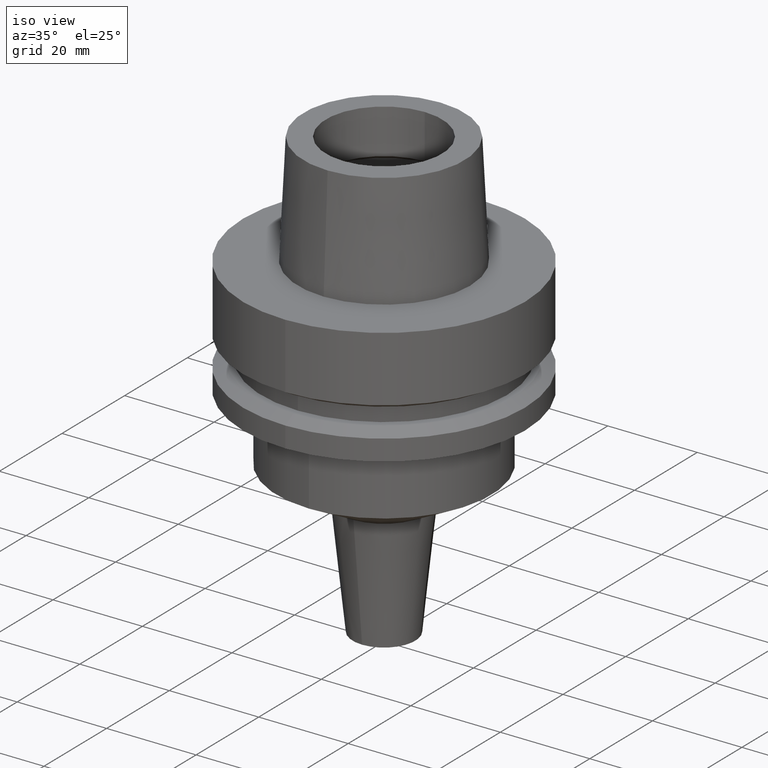
[diagram: clean part render]
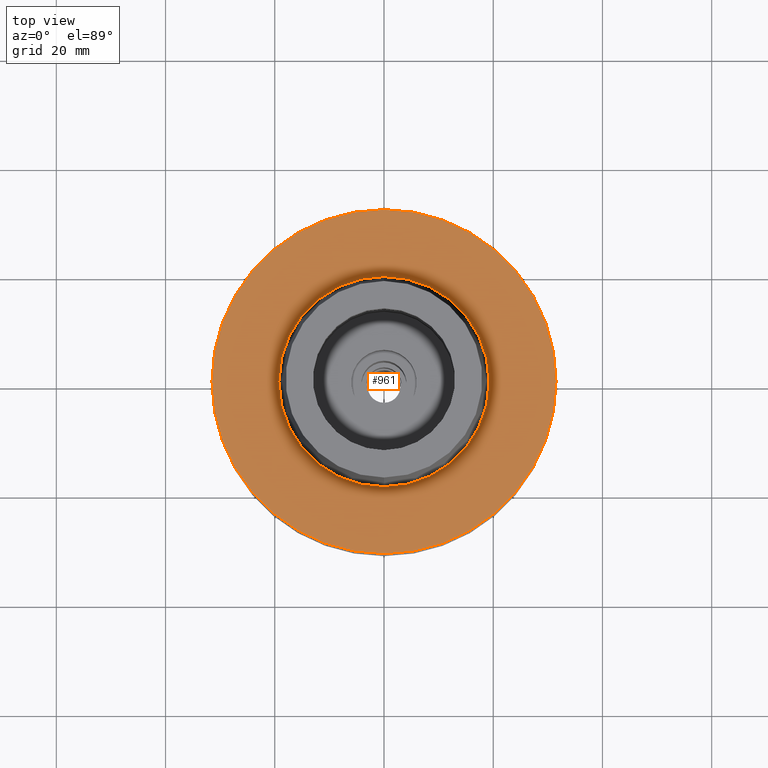
[diagram: tour spotlight — one face highlighted and labeled with its STEP entity id]
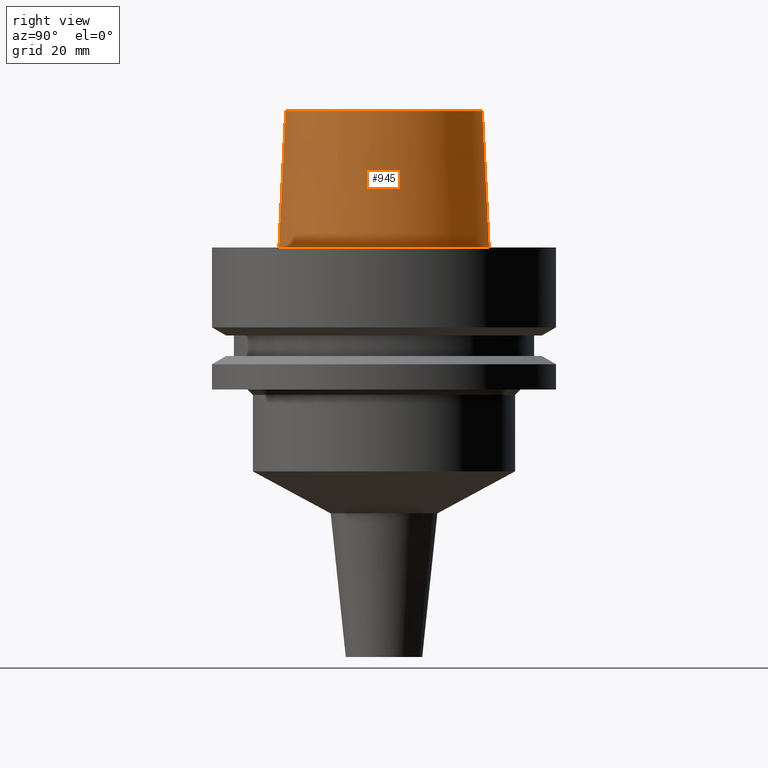
[diagram: tour spotlight — one face highlighted and labeled with its STEP entity id]
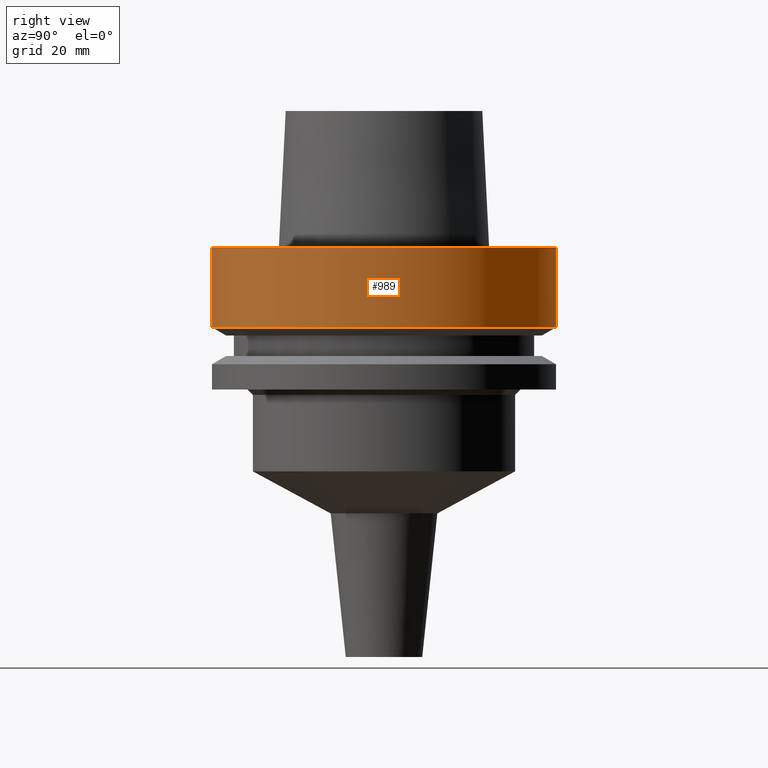
[diagram: tour spotlight — one face highlighted and labeled with its STEP entity id]
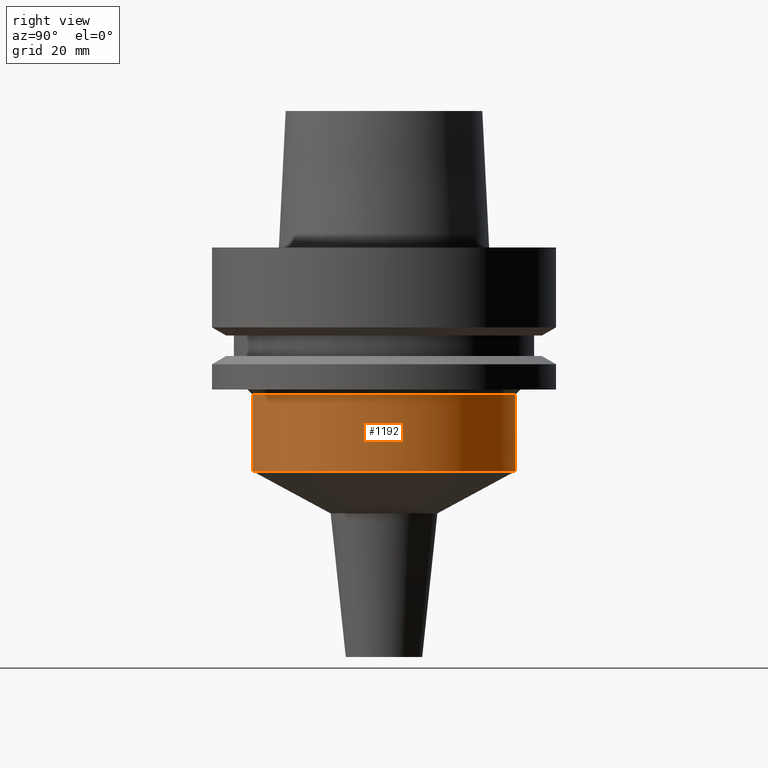
[diagram: tour spotlight — one face highlighted and labeled with its STEP entity id]
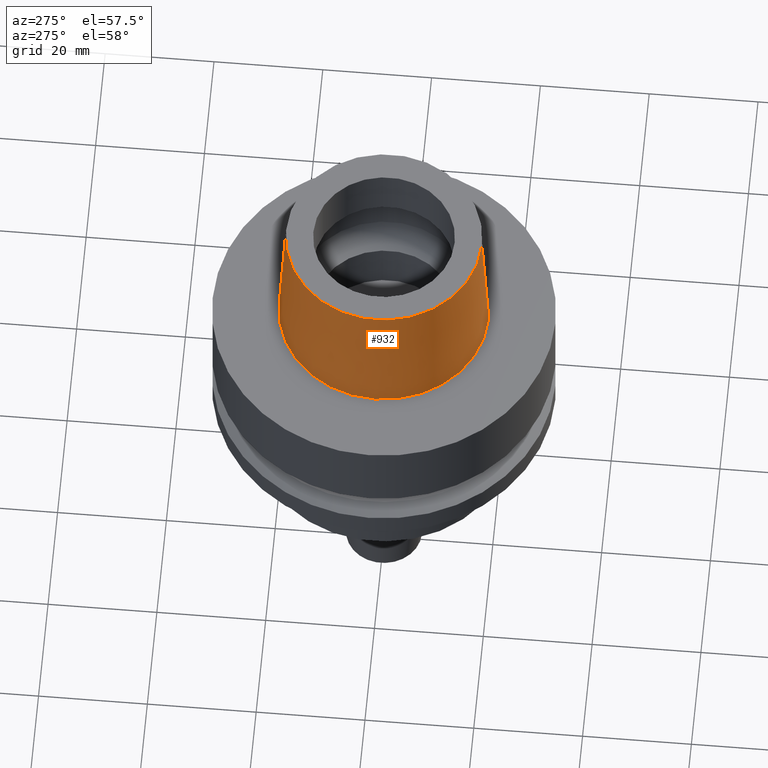
[diagram: tour spotlight — one face highlighted and labeled with its STEP entity id]
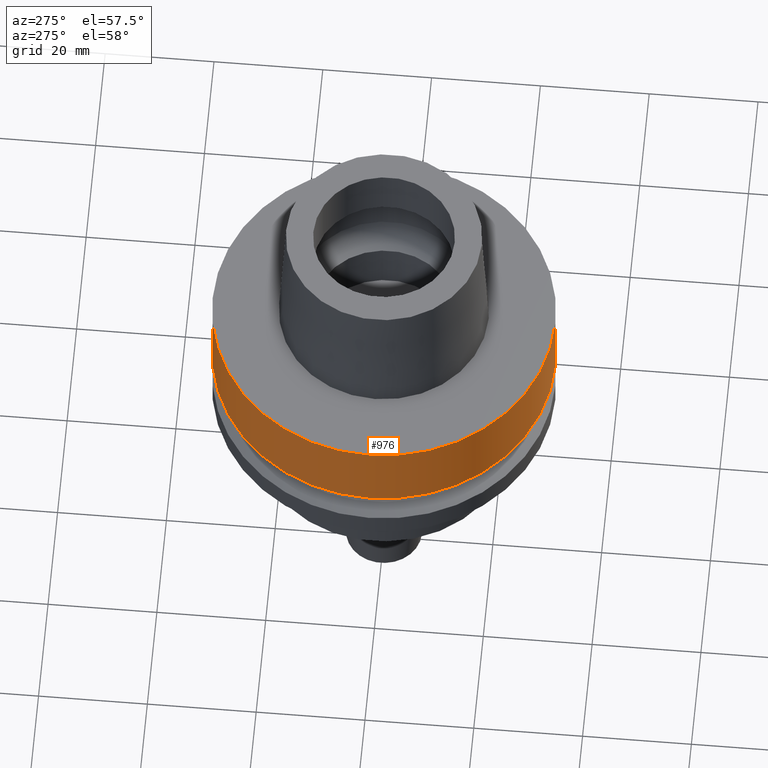
[diagram: tour spotlight — one face highlighted and labeled with its STEP entity id]
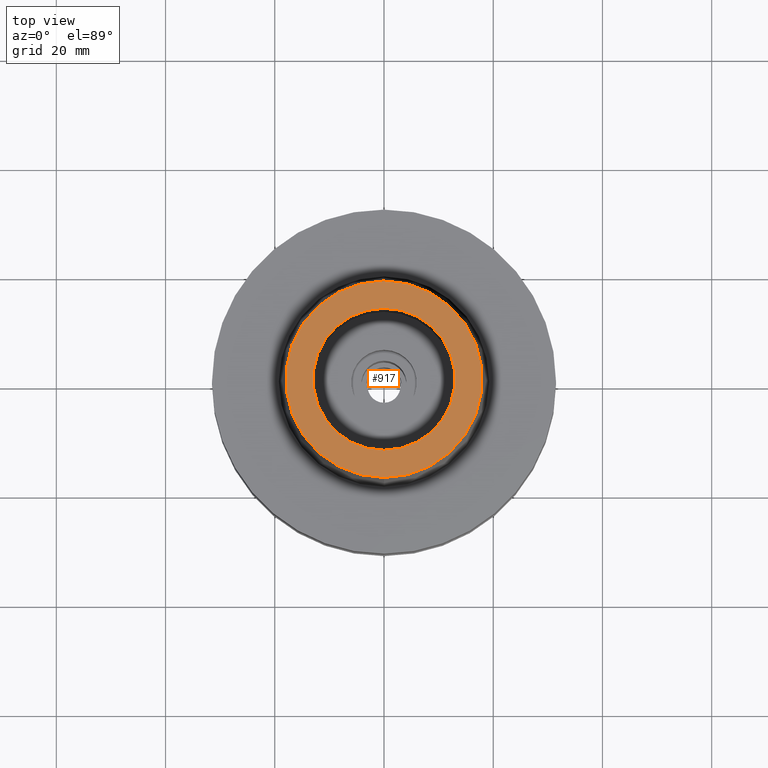
[diagram: tour spotlight — one face highlighted and labeled with its STEP entity id]
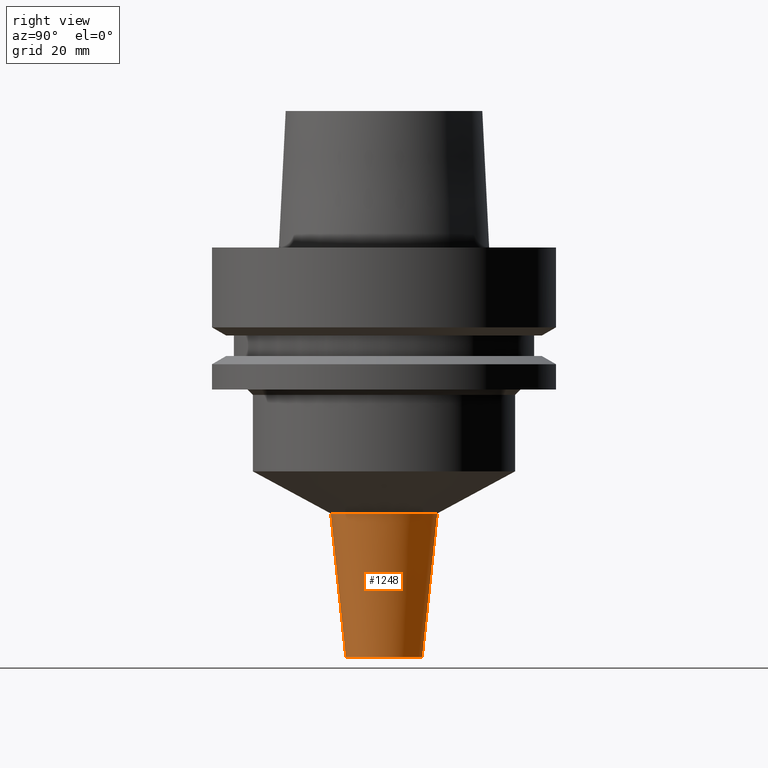
[diagram: tour spotlight — one face highlighted and labeled with its STEP entity id]
A machine part: a face-by-face anatomy tour. The part has 50 B-rep faces; the first image is the clean iso view, then the 8 largest visible faces are spotlighted one at a time (largest first), each with its STEP entity span.

Face 1 — top view, entity #961. In plain terms, the highlighted planar face has unit normal (0, 0, -1).
Definition (entity closure, byte-faithful):
#64=CARTESIAN_POINT('',(0.E0,0.E0,0.E0));
#65=DIRECTION('',(0.E0,0.E0,-1.E0));
#66=DIRECTION('',(0.E0,-1.E0,0.E0));
#67=AXIS2_PLACEMENT_3D('',#64,#65,#66);
#72=CARTESIAN_POINT('',(0.E0,0.E0,0.E0));
#73=DIRECTION('',(0.E0,0.E0,-1.E0));
#74=DIRECTION('',(0.E0,1.E0,0.E0));
#75=AXIS2_PLACEMENT_3D('',#72,#73,#74);
#80=CARTESIAN_POINT('',(0.E0,0.E0,2.273736754432E-13));
#81=DIRECTION('',(0.E0,0.E0,1.E0));
#82=DIRECTION('',(0.E0,-1.E0,0.E0));
#83=AXIS2_PLACEMENT_3D('',#80,#81,#82);
#88=CARTESIAN_POINT('',(0.E0,0.E0,2.273736754432E-13));
#89=DIRECTION('',(0.E0,0.E0,1.E0));
#90=DIRECTION('',(0.E0,1.E0,0.E0));
#91=AXIS2_PLACEMENT_3D('',#88,#89,#90);
#892=CARTESIAN_POINT('',(0.E0,3.15E1,0.E0));
#893=VERTEX_POINT('',#892);
#894=CARTESIAN_POINT('',(0.E0,-3.15E1,0.E0));
#895=VERTEX_POINT('',#894);
#896=CARTESIAN_POINT('',(0.E0,-1.924999954280E1,2.273736754432E-13));
#897=CARTESIAN_POINT('',(0.E0,1.924999954280E1,2.273736754432E-13));
#898=VERTEX_POINT('',#896);
#899=VERTEX_POINT('',#897);
#946=CARTESIAN_POINT('',(0.E0,0.E0,0.E0));
#947=DIRECTION('',(0.E0,0.E0,-1.E0));
#948=DIRECTION('',(0.E0,-1.E0,0.E0));
#949=AXIS2_PLACEMENT_3D('',#946,#947,#948);
#950=PLANE('',#949);
#952=ORIENTED_EDGE('',*,*,#951,.T.);
#954=ORIENTED_EDGE('',*,*,#953,.T.);
#955=EDGE_LOOP('',(#952,#954));
#956=FACE_OUTER_BOUND('',#955,.F.);
#957=ORIENTED_EDGE('',*,*,#939,.T.);
#958=ORIENTED_EDGE('',*,*,#928,.T.);
#959=EDGE_LOOP('',(#957,#958));
#960=FACE_BOUND('',#959,.F.);
#68=CIRCLE('',#67,3.15E1);
#76=CIRCLE('',#75,3.15E1);
#84=CIRCLE('',#83,1.924999954280E1);
#92=CIRCLE('',#91,1.924999954280E1);
#928=EDGE_CURVE('',#899,#898,#92,.T.);
#939=EDGE_CURVE('',#898,#899,#84,.T.);
#951=EDGE_CURVE('',#895,#893,#68,.T.);
#953=EDGE_CURVE('',#893,#895,#76,.T.);
#961=ADVANCED_FACE('',(#956,#960),#950,.F.);

Face 2 — right view, entity #945. In plain terms, the highlighted conical surface has half-angle 2.862 deg.
Definition (entity closure, byte-faithful):
#26=CARTESIAN_POINT('',(0.E0,0.E0,2.5E1));
#27=DIRECTION('',(0.E0,0.E0,-1.E0));
#28=DIRECTION('',(0.E0,1.E0,0.E0));
#29=AXIS2_PLACEMENT_3D('',#26,#27,#28);
#50=DIRECTION('',(0.E0,-4.993752584487E-2,-9.987523434328E-1));
#51=VECTOR('',#50,2.503123037897E1);
#52=CARTESIAN_POINT('',(0.E0,-1.800000182882E1,2.5E1));
#53=LINE('',#52,#51);
#57=DIRECTION('',(0.E0,4.993752584487E-2,-9.987523434328E-1));
#58=VECTOR('',#57,2.503123037897E1);
#59=CARTESIAN_POINT('',(0.E0,1.800000182882E1,2.5E1));
#60=LINE('',#59,#58);
#80=CARTESIAN_POINT('',(0.E0,0.E0,2.273736754432E-13));
#81=DIRECTION('',(0.E0,0.E0,1.E0));
#82=DIRECTION('',(0.E0,-1.E0,0.E0));
#83=AXIS2_PLACEMENT_3D('',#80,#81,#82);
#780=CARTESIAN_POINT('',(0.E0,-1.800000182882E1,2.5E1));
#781=CARTESIAN_POINT('',(0.E0,1.800000182882E1,2.5E1));
#782=VERTEX_POINT('',#780);
#783=VERTEX_POINT('',#781);
#896=CARTESIAN_POINT('',(0.E0,-1.924999954280E1,2.273736754432E-13));
#897=CARTESIAN_POINT('',(0.E0,1.924999954280E1,2.273736754432E-13));
#898=VERTEX_POINT('',#896);
#899=VERTEX_POINT('',#897);
#933=CARTESIAN_POINT('',(0.E0,0.E0,1.25E1));
#934=DIRECTION('',(0.E0,0.E0,-1.E0));
#935=DIRECTION('',(0.E0,-1.E0,0.E0));
#936=AXIS2_PLACEMENT_3D('',#933,#934,#935);
#937=CONICAL_SURFACE('',#936,1.862500068581E1,2.8624E0);
#938=ORIENTED_EDGE('',*,*,#923,.T.);
#940=ORIENTED_EDGE('',*,*,#939,.F.);
#941=ORIENTED_EDGE('',*,*,#926,.F.);
#942=ORIENTED_EDGE('',*,*,#907,.F.);
#943=EDGE_LOOP('',(#938,#940,#941,#942));
#944=FACE_OUTER_BOUND('',#943,.F.);
#30=CIRCLE('',#29,1.800000182882E1);
#84=CIRCLE('',#83,1.924999954280E1);
#907=EDGE_CURVE('',#783,#782,#30,.T.);
#923=EDGE_CURVE('',#783,#899,#60,.T.);
#926=EDGE_CURVE('',#782,#898,#53,.T.);
#939=EDGE_CURVE('',#898,#899,#84,.T.);
#945=ADVANCED_FACE('',(#944),#937,.T.);

Face 3 — right view, entity #989. In plain terms, the highlighted cylindrical surface (partial cylindrical patch) has radius 31.5 mm, axis along (0, 0, -1).
Definition (entity closure, byte-faithful):
#72=CARTESIAN_POINT('',(0.E0,0.E0,0.E0));
#73=DIRECTION('',(0.E0,0.E0,-1.E0));
#74=DIRECTION('',(0.E0,1.E0,0.E0));
#75=AXIS2_PLACEMENT_3D('',#72,#73,#74);
#96=DIRECTION('',(0.E0,-4.130355870613E-14,-1.E0));
#97=VECTOR('',#96,1.462250092524E1);
#98=CARTESIAN_POINT('',(0.E0,-3.15E1,0.E0));
#99=LINE('',#98,#97);
#103=DIRECTION('',(0.E0,4.130355870613E-14,-1.E0));
#104=VECTOR('',#103,1.462250092524E1);
#105=CARTESIAN_POINT('',(0.E0,3.15E1,0.E0));
#106=LINE('',#105,#104);
#117=CARTESIAN_POINT('',(0.E0,0.E0,-1.462250092524E1));
#118=DIRECTION('',(0.E0,0.E0,1.E0));
#119=DIRECTION('',(0.E0,-1.E0,0.E0));
#120=AXIS2_PLACEMENT_3D('',#117,#118,#119);
#888=CARTESIAN_POINT('',(0.E0,3.15E1,-1.462250092524E1));
#889=VERTEX_POINT('',#888);
#890=CARTESIAN_POINT('',(0.E0,-3.15E1,-1.462250092524E1));
#891=VERTEX_POINT('',#890);
#892=CARTESIAN_POINT('',(0.E0,3.15E1,0.E0));
#893=VERTEX_POINT('',#892);
#894=CARTESIAN_POINT('',(0.E0,-3.15E1,0.E0));
#895=VERTEX_POINT('',#894);
#977=CARTESIAN_POINT('',(0.E0,0.E0,3.E1));
#978=DIRECTION('',(0.E0,0.E0,-1.E0));
#979=DIRECTION('',(0.E0,-1.E0,0.E0));
#980=AXIS2_PLACEMENT_3D('',#977,#978,#979);
#981=CYLINDRICAL_SURFACE('',#980,3.15E1);
#982=ORIENTED_EDGE('',*,*,#967,.T.);
#984=ORIENTED_EDGE('',*,*,#983,.F.);
#985=ORIENTED_EDGE('',*,*,#970,.F.);
#986=ORIENTED_EDGE('',*,*,#953,.F.);
#987=EDGE_LOOP('',(#982,#984,#985,#986));
#988=FACE_OUTER_BOUND('',#987,.F.);
#76=CIRCLE('',#75,3.15E1);
#121=CIRCLE('',#120,3.15E1);
#953=EDGE_CURVE('',#893,#895,#76,.T.);
#967=EDGE_CURVE('',#893,#889,#106,.T.);
#970=EDGE_CURVE('',#895,#891,#99,.T.);
#983=EDGE_CURVE('',#891,#889,#121,.T.);
#989=ADVANCED_FACE('',(#988),#981,.T.);

Face 4 — right view, entity #1192. In plain terms, the highlighted cylindrical surface (partial cylindrical patch) has radius 24 mm, axis along (0, 0, -1).
Definition (entity closure, byte-faithful):
#316=CARTESIAN_POINT('',(0.E0,0.E0,-2.7E1));
#317=DIRECTION('',(0.E0,0.E0,-1.E0));
#318=DIRECTION('',(0.E0,1.E0,0.E0));
#319=AXIS2_PLACEMENT_3D('',#316,#317,#318);
#324=DIRECTION('',(0.E0,-3.222818837198E-14,-1.E0));
#325=VECTOR('',#324,1.4E1);
#326=CARTESIAN_POINT('',(0.E0,2.4E1,-2.7E1));
#327=LINE('',#326,#325);
#331=DIRECTION('',(0.E0,3.222818837198E-14,-1.E0));
#332=VECTOR('',#331,1.4E1);
#333=CARTESIAN_POINT('',(0.E0,-2.4E1,-2.7E1));
#334=LINE('',#333,#332);
#368=CARTESIAN_POINT('',(0.E0,0.E0,-4.1E1));
#369=DIRECTION('',(0.E0,0.E0,1.E0));
#370=DIRECTION('',(0.E0,-1.E0,0.E0));
#371=AXIS2_PLACEMENT_3D('',#368,#369,#370);
#852=CARTESIAN_POINT('',(0.E0,2.4E1,-4.1E1));
#853=VERTEX_POINT('',#852);
#854=CARTESIAN_POINT('',(0.E0,-2.4E1,-4.1E1));
#855=VERTEX_POINT('',#854);
#856=CARTESIAN_POINT('',(0.E0,2.4E1,-2.7E1));
#857=VERTEX_POINT('',#856);
#858=CARTESIAN_POINT('',(0.E0,-2.4E1,-2.7E1));
#859=VERTEX_POINT('',#858);
#1178=CARTESIAN_POINT('',(0.E0,0.E0,3.E1));
#1179=DIRECTION('',(0.E0,0.E0,-1.E0));
#1180=DIRECTION('',(0.E0,-1.E0,0.E0));
#1181=AXIS2_PLACEMENT_3D('',#1178,#1179,#1180);
#1182=CYLINDRICAL_SURFACE('',#1181,2.4E1);
#1184=ORIENTED_EDGE('',*,*,#1183,.T.);
#1186=ORIENTED_EDGE('',*,*,#1185,.F.);
#1188=ORIENTED_EDGE('',*,*,#1187,.F.);
#1189=ORIENTED_EDGE('',*,*,#1171,.F.);
#1190=EDGE_LOOP('',(#1184,#1186,#1188,#1189));
#1191=FACE_OUTER_BOUND('',#1190,.F.);
#320=CIRCLE('',#319,2.4E1);
#372=CIRCLE('',#371,2.4E1);
#1171=EDGE_CURVE('',#857,#859,#320,.T.);
#1183=EDGE_CURVE('',#857,#853,#327,.T.);
#1185=EDGE_CURVE('',#855,#853,#372,.T.);
#1187=EDGE_CURVE('',#859,#855,#334,.T.);
#1192=ADVANCED_FACE('',(#1191),#1182,.T.);

Face 5 — auxiliary view, entity #932. In plain terms, the highlighted conical surface has half-angle 2.862 deg.
Definition (entity closure, byte-faithful):
#17=CARTESIAN_POINT('',(0.E0,0.E0,2.5E1));
#18=DIRECTION('',(0.E0,0.E0,-1.E0));
#19=DIRECTION('',(0.E0,-1.E0,0.E0));
#20=AXIS2_PLACEMENT_3D('',#17,#18,#19);
#50=DIRECTION('',(0.E0,-4.993752584487E-2,-9.987523434328E-1));
#51=VECTOR('',#50,2.503123037897E1);
#52=CARTESIAN_POINT('',(0.E0,-1.800000182882E1,2.5E1));
#53=LINE('',#52,#51);
#57=DIRECTION('',(0.E0,4.993752584487E-2,-9.987523434328E-1));
#58=VECTOR('',#57,2.503123037897E1);
#59=CARTESIAN_POINT('',(0.E0,1.800000182882E1,2.5E1));
#60=LINE('',#59,#58);
#88=CARTESIAN_POINT('',(0.E0,0.E0,2.273736754432E-13));
#89=DIRECTION('',(0.E0,0.E0,1.E0));
#90=DIRECTION('',(0.E0,1.E0,0.E0));
#91=AXIS2_PLACEMENT_3D('',#88,#89,#90);
#780=CARTESIAN_POINT('',(0.E0,-1.800000182882E1,2.5E1));
#781=CARTESIAN_POINT('',(0.E0,1.800000182882E1,2.5E1));
#782=VERTEX_POINT('',#780);
#783=VERTEX_POINT('',#781);
#896=CARTESIAN_POINT('',(0.E0,-1.924999954280E1,2.273736754432E-13));
#897=CARTESIAN_POINT('',(0.E0,1.924999954280E1,2.273736754432E-13));
#898=VERTEX_POINT('',#896);
#899=VERTEX_POINT('',#897);
#918=CARTESIAN_POINT('',(0.E0,0.E0,1.25E1));
#919=DIRECTION('',(0.E0,0.E0,-1.E0));
#920=DIRECTION('',(0.E0,-1.E0,0.E0));
#921=AXIS2_PLACEMENT_3D('',#918,#919,#920);
#922=CONICAL_SURFACE('',#921,1.862500068581E1,2.8624E0);
#924=ORIENTED_EDGE('',*,*,#923,.F.);
#925=ORIENTED_EDGE('',*,*,#905,.F.);
#927=ORIENTED_EDGE('',*,*,#926,.T.);
#929=ORIENTED_EDGE('',*,*,#928,.F.);
#930=EDGE_LOOP('',(#924,#925,#927,#929));
#931=FACE_OUTER_BOUND('',#930,.F.);
#21=CIRCLE('',#20,1.800000182882E1);
#92=CIRCLE('',#91,1.924999954280E1);
#905=EDGE_CURVE('',#782,#783,#21,.T.);
#923=EDGE_CURVE('',#783,#899,#60,.T.);
#926=EDGE_CURVE('',#782,#898,#53,.T.);
#928=EDGE_CURVE('',#899,#898,#92,.T.);
#932=ADVANCED_FACE('',(#931),#922,.T.);

Face 6 — auxiliary view, entity #976. In plain terms, the highlighted cylindrical surface (partial cylindrical patch) has radius 31.5 mm, axis along (0, 0, -1).
Definition (entity closure, byte-faithful):
#64=CARTESIAN_POINT('',(0.E0,0.E0,0.E0));
#65=DIRECTION('',(0.E0,0.E0,-1.E0));
#66=DIRECTION('',(0.E0,-1.E0,0.E0));
#67=AXIS2_PLACEMENT_3D('',#64,#65,#66);
#96=DIRECTION('',(0.E0,-4.130355870613E-14,-1.E0));
#97=VECTOR('',#96,1.462250092524E1);
#98=CARTESIAN_POINT('',(0.E0,-3.15E1,0.E0));
#99=LINE('',#98,#97);
#103=DIRECTION('',(0.E0,4.130355870613E-14,-1.E0));
#104=VECTOR('',#103,1.462250092524E1);
#105=CARTESIAN_POINT('',(0.E0,3.15E1,0.E0));
#106=LINE('',#105,#104);
#125=CARTESIAN_POINT('',(0.E0,0.E0,-1.462250092524E1));
#126=DIRECTION('',(0.E0,0.E0,1.E0));
#127=DIRECTION('',(0.E0,1.E0,0.E0));
#128=AXIS2_PLACEMENT_3D('',#125,#126,#127);
#888=CARTESIAN_POINT('',(0.E0,3.15E1,-1.462250092524E1));
#889=VERTEX_POINT('',#888);
#890=CARTESIAN_POINT('',(0.E0,-3.15E1,-1.462250092524E1));
#891=VERTEX_POINT('',#890);
#892=CARTESIAN_POINT('',(0.E0,3.15E1,0.E0));
#893=VERTEX_POINT('',#892);
#894=CARTESIAN_POINT('',(0.E0,-3.15E1,0.E0));
#895=VERTEX_POINT('',#894);
#962=CARTESIAN_POINT('',(0.E0,0.E0,3.E1));
#963=DIRECTION('',(0.E0,0.E0,-1.E0));
#964=DIRECTION('',(0.E0,-1.E0,0.E0));
#965=AXIS2_PLACEMENT_3D('',#962,#963,#964);
#966=CYLINDRICAL_SURFACE('',#965,3.15E1);
#968=ORIENTED_EDGE('',*,*,#967,.F.);
#969=ORIENTED_EDGE('',*,*,#951,.F.);
#971=ORIENTED_EDGE('',*,*,#970,.T.);
#973=ORIENTED_EDGE('',*,*,#972,.F.);
#974=EDGE_LOOP('',(#968,#969,#971,#973));
#975=FACE_OUTER_BOUND('',#974,.F.);
#68=CIRCLE('',#67,3.15E1);
#129=CIRCLE('',#128,3.15E1);
#951=EDGE_CURVE('',#895,#893,#68,.T.);
#967=EDGE_CURVE('',#893,#889,#106,.T.);
#970=EDGE_CURVE('',#895,#891,#99,.T.);
#972=EDGE_CURVE('',#889,#891,#129,.T.);
#976=ADVANCED_FACE('',(#975),#966,.T.);

Face 7 — top view, entity #917. In plain terms, the highlighted planar face has unit normal (0, 0, -1).
Definition (entity closure, byte-faithful):
#17=CARTESIAN_POINT('',(0.E0,0.E0,2.5E1));
#18=DIRECTION('',(0.E0,0.E0,-1.E0));
#19=DIRECTION('',(0.E0,-1.E0,0.E0));
#20=AXIS2_PLACEMENT_3D('',#17,#18,#19);
#26=CARTESIAN_POINT('',(0.E0,0.E0,2.5E1));
#27=DIRECTION('',(0.E0,0.E0,-1.E0));
#28=DIRECTION('',(0.E0,1.E0,0.E0));
#29=AXIS2_PLACEMENT_3D('',#26,#27,#28);
#34=CARTESIAN_POINT('',(0.E0,0.E0,2.5E1));
#35=DIRECTION('',(0.E0,0.E0,1.E0));
#36=DIRECTION('',(0.E0,-1.E0,0.E0));
#37=AXIS2_PLACEMENT_3D('',#34,#35,#36);
#42=CARTESIAN_POINT('',(0.E0,0.E0,2.5E1));
#43=DIRECTION('',(0.E0,0.E0,1.E0));
#44=DIRECTION('',(0.E0,1.E0,0.E0));
#45=AXIS2_PLACEMENT_3D('',#42,#43,#44);
#780=CARTESIAN_POINT('',(0.E0,-1.800000182882E1,2.5E1));
#781=CARTESIAN_POINT('',(0.E0,1.800000182882E1,2.5E1));
#782=VERTEX_POINT('',#780);
#783=VERTEX_POINT('',#781);
#784=CARTESIAN_POINT('',(0.E0,-1.3E1,2.5E1));
#785=CARTESIAN_POINT('',(0.E0,1.3E1,2.5E1));
#786=VERTEX_POINT('',#784);
#787=VERTEX_POINT('',#785);
#900=CARTESIAN_POINT('',(0.E0,0.E0,2.5E1));
#901=DIRECTION('',(0.E0,0.E0,-1.E0));
#902=DIRECTION('',(0.E0,-1.E0,0.E0));
#903=AXIS2_PLACEMENT_3D('',#900,#901,#902);
#904=PLANE('',#903);
#906=ORIENTED_EDGE('',*,*,#905,.T.);
#908=ORIENTED_EDGE('',*,*,#907,.T.);
#909=EDGE_LOOP('',(#906,#908));
#910=FACE_OUTER_BOUND('',#909,.F.);
#912=ORIENTED_EDGE('',*,*,#911,.T.);
#914=ORIENTED_EDGE('',*,*,#913,.T.);
#915=EDGE_LOOP('',(#912,#914));
#916=FACE_BOUND('',#915,.F.);
#21=CIRCLE('',#20,1.800000182882E1);
#30=CIRCLE('',#29,1.800000182882E1);
#38=CIRCLE('',#37,1.3E1);
#46=CIRCLE('',#45,1.3E1);
#905=EDGE_CURVE('',#782,#783,#21,.T.);
#907=EDGE_CURVE('',#783,#782,#30,.T.);
#911=EDGE_CURVE('',#786,#787,#38,.T.);
#913=EDGE_CURVE('',#787,#786,#46,.T.);
#917=ADVANCED_FACE('',(#910,#916),#904,.F.);

Face 8 — right view, entity #1248. In plain terms, the highlighted conical surface has half-angle 6 deg.
Definition (entity closure, byte-faithful):
#376=DIRECTION('',(0.E0,-1.045284632677E-1,-9.945218953683E-1));
#377=VECTOR('',#376,2.644780380979E1);
#378=CARTESIAN_POINT('',(0.E0,9.764548289042E0,-4.869708002676E1));
#379=LINE('',#378,#377);
#383=CARTESIAN_POINT('',(0.E0,0.E0,-4.869708002676E1));
#384=DIRECTION('',(0.E0,0.E0,1.E0));
#385=DIRECTION('',(0.E0,-1.E0,0.E0));
#386=AXIS2_PLACEMENT_3D('',#383,#384,#385);
#391=DIRECTION('',(0.E0,1.045284632677E-1,-9.945218953683E-1));
#392=VECTOR('',#391,2.644780380979E1);
#393=CARTESIAN_POINT('',(0.E0,-9.764548289042E0,-4.869708002676E1));
#394=LINE('',#393,#392);
#398=CARTESIAN_POINT('',(0.E0,0.E0,-7.5E1));
#399=DIRECTION('',(0.E0,0.E0,1.E0));
#400=DIRECTION('',(0.E0,-1.E0,0.E0));
#401=AXIS2_PLACEMENT_3D('',#398,#399,#400);
#844=CARTESIAN_POINT('',(0.E0,-7.E0,-7.5E1));
#845=CARTESIAN_POINT('',(0.E0,7.E0,-7.5E1));
#846=VERTEX_POINT('',#844);
#847=VERTEX_POINT('',#845);
#848=CARTESIAN_POINT('',(0.E0,9.764548289042E0,-4.869708002676E1));
#849=VERTEX_POINT('',#848);
#850=CARTESIAN_POINT('',(0.E0,-9.764548289042E0,-4.869708002676E1));
#851=VERTEX_POINT('',#850);
#1234=CARTESIAN_POINT('',(0.E0,0.E0,-6.184854001338E1));
#1235=DIRECTION('',(0.E0,0.E0,1.E0));
#1236=DIRECTION('',(0.E0,1.E0,0.E0));
#1237=AXIS2_PLACEMENT_3D('',#1234,#1235,#1236);
#1238=CONICAL_SURFACE('',#1237,8.382274144521E0,6.E0);
#1240=ORIENTED_EDGE('',*,*,#1239,.T.);
#1242=ORIENTED_EDGE('',*,*,#1241,.F.);
#1244=ORIENTED_EDGE('',*,*,#1243,.F.);
#1245=ORIENTED_EDGE('',*,*,#1227,.T.);
#1246=EDGE_LOOP('',(#1240,#1242,#1244,#1245));
#1247=FACE_OUTER_BOUND('',#1246,.F.);
#387=CIRCLE('',#386,9.764548289042E0);
#402=CIRCLE('',#401,7.E0);
#1227=EDGE_CURVE('',#851,#849,#387,.T.);
#1239=EDGE_CURVE('',#849,#847,#379,.T.);
#1241=EDGE_CURVE('',#846,#847,#402,.T.);
#1243=EDGE_CURVE('',#851,#846,#394,.T.);
#1248=ADVANCED_FACE('',(#1247),#1238,.T.);